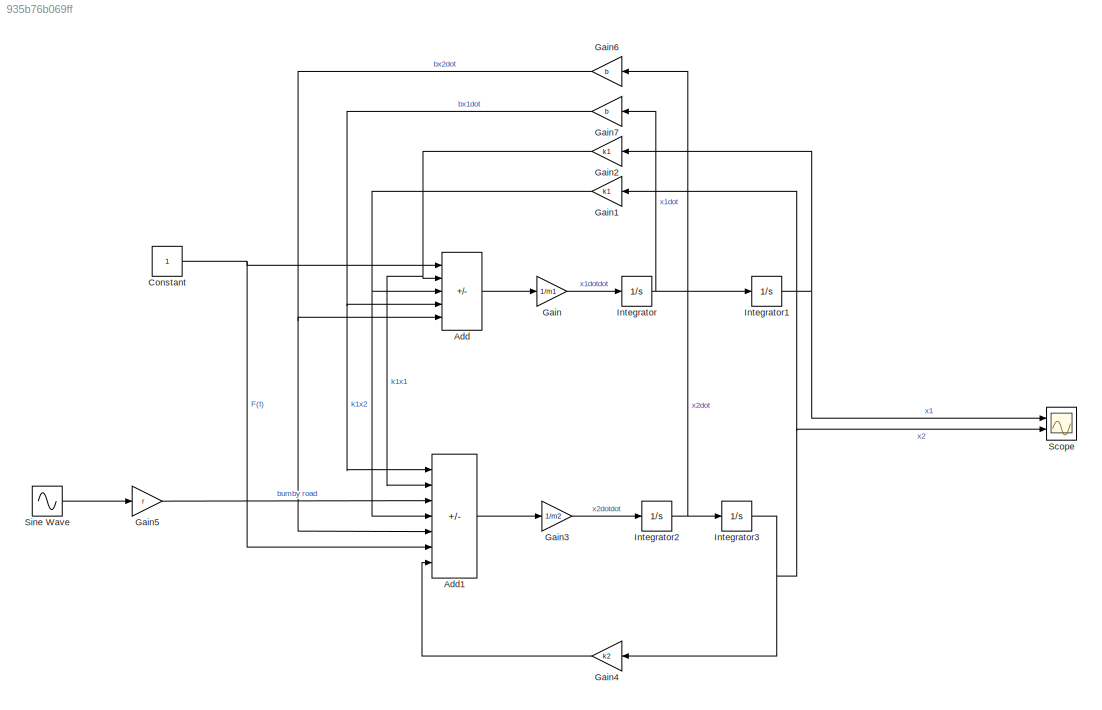
MODEL slx_935b76b069ff
KIND model
CONFIG AbsTol = auto
CONFIG EnableMultiTasking = off
CONFIG FixedStep = auto
CONFIG MaxStep = auto
CONFIG MinStep = auto
CONFIG PreLoadFcn = clear all;\nclose all;\nclc;\nth=linspace(0,3*pi);\nr=0.1*sin(th);\nr(th>pi)=0;\nm1=50;\nk1=5700;\nk2=135000;\nb=290;\nF=1;\nm2=100;\n
CONFIG RelTol = 1e-3
CONFIG SampleTimeConstraint = Unconstrained
CONFIG SolverName = VariableStepAuto
CONFIG StartTime = 0.0
CONFIG StopTime = 100
BLOCK [Sum] Add
  IconShape = rectangular
  Inputs = +-+-+
  Ports = [5, 1]
BLOCK [Sum] Add1
  IconShape = rectangular
  Inputs = +++----
  Ports = [7, 1]
BLOCK [Constant] Constant
BLOCK [Gain] Gain
  Gain = 1/m1
BLOCK [Gain] Gain1
  Gain = k1
BLOCK [Gain] Gain2
  Gain = k1
BLOCK [Gain] Gain3
  Gain = 1/m2
BLOCK [Gain] Gain4
  Gain = k2
BLOCK [Gain] Gain5
  Gain = r
BLOCK [Gain] Gain6
  Gain = b
BLOCK [Gain] Gain7
  Gain = b
BLOCK [Integrator] Integrator
  Ports = [1, 1]
BLOCK [Integrator] Integrator1
  Ports = [1, 1]
BLOCK [Integrator] Integrator2
  Ports = [1, 1]
BLOCK [Integrator] Integrator3
  Ports = [1, 1]
BLOCK [Scope] Scope
  Floating = off
  NumInputPorts = 2
  Ports = [2]
  ScopeSpecificationString = Simulink.scopes.TimeScopeBlockCfg('CurrentConfiguration', extmgr.ConfigurationSet(extmgr.Configuration('Core','General UI',true),extmgr.Configuration('Core','Source UI',true),extmgr.Configuration('Sources','WiredSimulink',true),extmgr.Configuration('Visuals','Time Domain',true,'SerializedDisplays',{struct('MinYLimReal','-0.00003','MaxYLimReal','0.00028','YLabelReal','','MinYLimMag','0.00000','MaxY...<+3540ch>
BLOCK [Sin] Sine Wave
  Ports = [0, 1]
  SampleTime = 0
LINE Add1:1 -> Gain3:1
LINE Add:1 -> Gain:1
NET Constant:1 -> Add1:6, Add:1
NET Gain1:1 -> Add1:4, Add:3
NET Gain2:1 -> Add1:2, Add:2
LINE Gain3:1 -> Integrator2:1
LINE Gain4:1 -> Add1:7
LINE Gain5:1 -> Add1:3
NET Gain6:1 -> Add1:5, Add:5
NET Gain7:1 -> Add1:1, Add:4
LINE Gain:1 -> Integrator:1
NET Integrator1:1 -> Gain2:1, Scope:1
NET Integrator2:1 -> Gain6:1, Integrator3:1
NET Integrator3:1 -> Gain1:1, Gain4:1, Scope:2
NET Integrator:1 -> Gain7:1, Integrator1:1
LINE Sine Wave:1 -> Gain5:1
note: NET lines group one-source signal fan-out (src -> all destinations, sorted); 1:1 wires keep LINE
